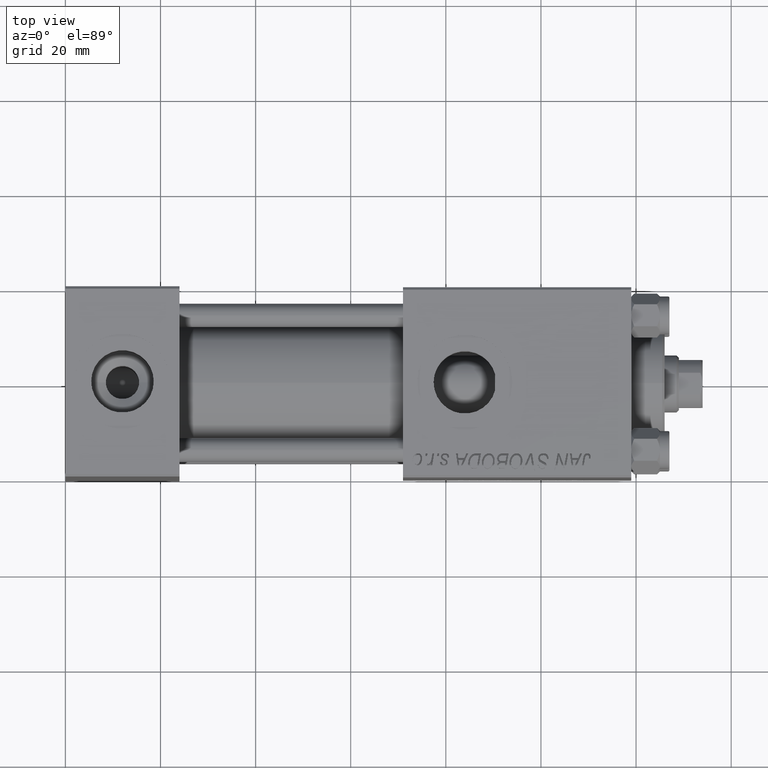
[diagram: clean part render]
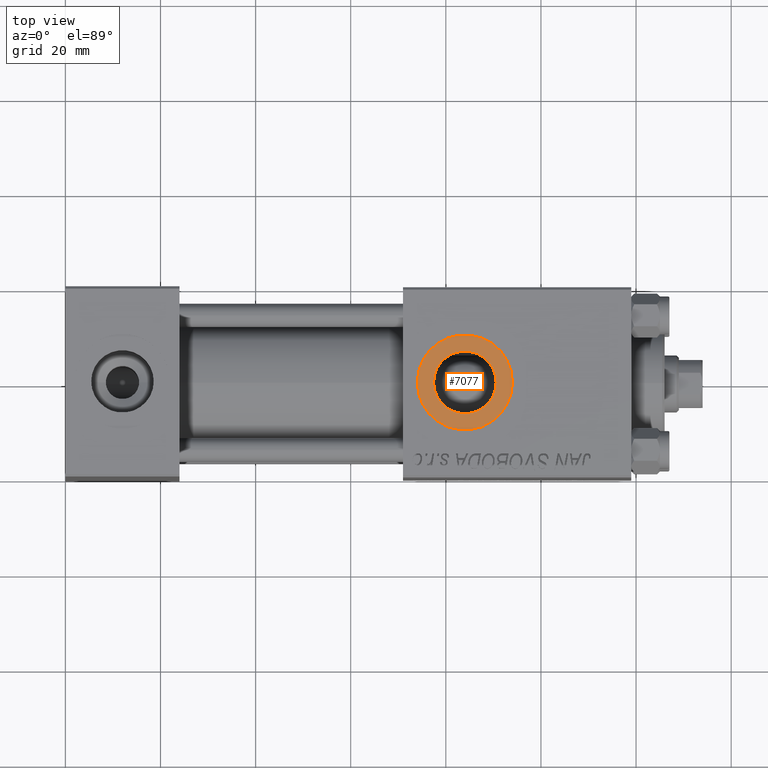
[diagram: same view with one face highlighted and labeled with its STEP entity id]
A machine part, top view. The second image highlights one B-rep face of the part: STEP entity #7077.
In plain terms, the highlighted planar face has unit normal (0, 0, 1).
Its self-contained STEP definition (entity closure, byte-faithful):
#27 = VERTEX_POINT ( 'NONE', #18397 ) ;
#961 = PLANE ( 'NONE',  #37090 ) ;
#2627 = DIRECTION ( 'NONE',  ( 1.000000000000000000, 0.000000000000000000, 0.000000000000000000 ) ) ;
#2695 = EDGE_CURVE ( 'NONE', #24674, #13838, #26583, .T. ) ;
#3824 = CARTESIAN_POINT ( 'NONE',  ( 84.00000000000000000, -1.734723475976806897E-15, 19.80000000000000071 ) ) ;
#6413 = DIRECTION ( 'NONE',  ( 0.000000000000000000, 0.000000000000000000, 1.000000000000000000 ) ) ;
#7077 = ADVANCED_FACE ( 'NONE', ( #20645, #27714 ), #961, .T. ) ;
#12572 = CARTESIAN_POINT ( 'NONE',  ( 84.00000000000000000, -1.734723475976806897E-15, 19.80000000000000071 ) ) ;
#12634 = DIRECTION ( 'NONE',  ( 0.000000000000000000, 0.000000000000000000, 1.000000000000000000 ) ) ;
#13838 = VERTEX_POINT ( 'NONE', #27176 ) ;
#14527 = EDGE_LOOP ( 'NONE', ( #38999, #33481 ) ) ;
#15223 = ORIENTED_EDGE ( 'NONE', *, *, #33833, .T. ) ;
#15369 = CARTESIAN_POINT ( 'NONE',  ( 84.00000000000000000, -1.734723475976806897E-15, 19.80000000000000071 ) ) ;
#16445 = VERTEX_POINT ( 'NONE', #47517 ) ;
#18023 = AXIS2_PLACEMENT_3D ( 'NONE', #15369, #49946, #38835 ) ;
#18397 = CARTESIAN_POINT ( 'NONE',  ( 94.00000000000154898, -1.734723475976806897E-15, 19.80000000000000071 ) ) ;
#20391 = DIRECTION ( 'NONE',  ( 1.000000000000000000, 0.000000000000000000, -0.000000000000000000 ) ) ;
#20645 = FACE_BOUND ( 'NONE', #14527, .T. ) ;
#21301 = CIRCLE ( 'NONE', #40660, 6.580000000001542837 ) ;
#23920 = DIRECTION ( 'NONE',  ( 0.000000000000000000, 0.000000000000000000, 1.000000000000000000 ) ) ;
#24674 = VERTEX_POINT ( 'NONE', #30069 ) ;
#25739 = EDGE_LOOP ( 'NONE', ( #15223, #35134 ) ) ;
#26583 = CIRCLE ( 'NONE', #41908, 6.580000000001542837 ) ;
#27176 = CARTESIAN_POINT ( 'NONE',  ( 90.58000000000154728, -1.734723475976806897E-15, 19.80000000000000071 ) ) ;
#27714 = FACE_OUTER_BOUND ( 'NONE', #25739, .T. ) ;
#28012 = DIRECTION ( 'NONE',  ( 1.000000000000000000, 0.000000000000000000, 0.000000000000000000 ) ) ;
#29892 = CARTESIAN_POINT ( 'NONE',  ( 84.00000000000000000, -1.734723475976806897E-15, 19.80000000000000071 ) ) ;
#30069 = CARTESIAN_POINT ( 'NONE',  ( 77.41999999999846693, -9.289058821376599092E-16, 19.80000000000000071 ) ) ;
#31566 = CARTESIAN_POINT ( 'NONE',  ( 84.00000000000000000, -1.734723475976806897E-15, 19.80000000000000071 ) ) ;
#33481 = ORIENTED_EDGE ( 'NONE', *, *, #2695, .F. ) ;
#33833 = EDGE_CURVE ( 'NONE', #27, #16445, #39513, .T. ) ;
#35134 = ORIENTED_EDGE ( 'NONE', *, *, #43972, .T. ) ;
#37090 = AXIS2_PLACEMENT_3D ( 'NONE', #12572, #23920, #20391 ) ;
#37908 = DIRECTION ( 'NONE',  ( 0.000000000000000000, 0.000000000000000000, 1.000000000000000000 ) ) ;
#37927 = AXIS2_PLACEMENT_3D ( 'NONE', #29892, #6413, #2627 ) ;
#38161 = DIRECTION ( 'NONE',  ( 1.000000000000000000, 0.000000000000000000, 0.000000000000000000 ) ) ;
#38835 = DIRECTION ( 'NONE',  ( 1.000000000000000000, 0.000000000000000000, 0.000000000000000000 ) ) ;
#38999 = ORIENTED_EDGE ( 'NONE', *, *, #46667, .F. ) ;
#39001 = CIRCLE ( 'NONE', #18023, 10.00000000000154898 ) ;
#39513 = CIRCLE ( 'NONE', #37927, 10.00000000000154898 ) ;
#40660 = AXIS2_PLACEMENT_3D ( 'NONE', #3824, #37908, #38161 ) ;
#41908 = AXIS2_PLACEMENT_3D ( 'NONE', #31566, #12634, #28012 ) ;
#43972 = EDGE_CURVE ( 'NONE', #16445, #27, #39001, .T. ) ;
#46667 = EDGE_CURVE ( 'NONE', #13838, #24674, #21301, .T. ) ;
#47517 = CARTESIAN_POINT ( 'NONE',  ( 73.99999999999845102, -5.100766768292640183E-16, 19.80000000000000071 ) ) ;
#49946 = DIRECTION ( 'NONE',  ( 0.000000000000000000, 0.000000000000000000, 1.000000000000000000 ) ) ;